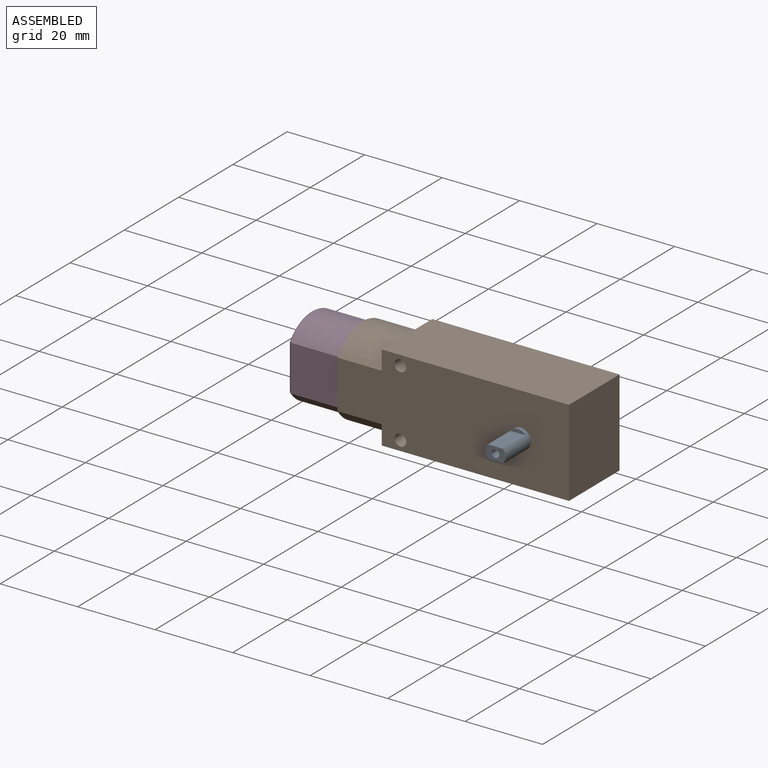
[diagram: assembled view]
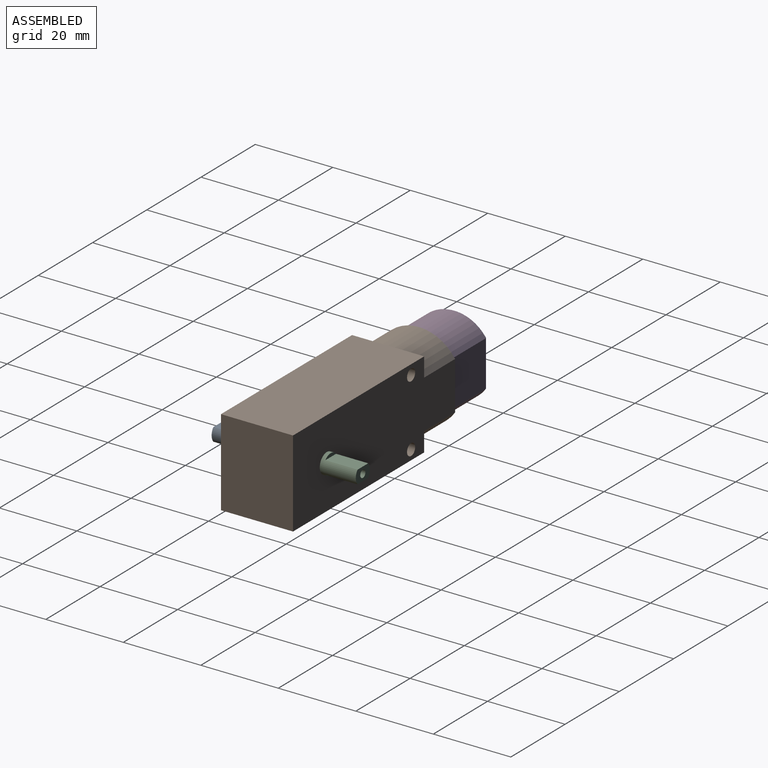
[diagram: assembled view, second angle]
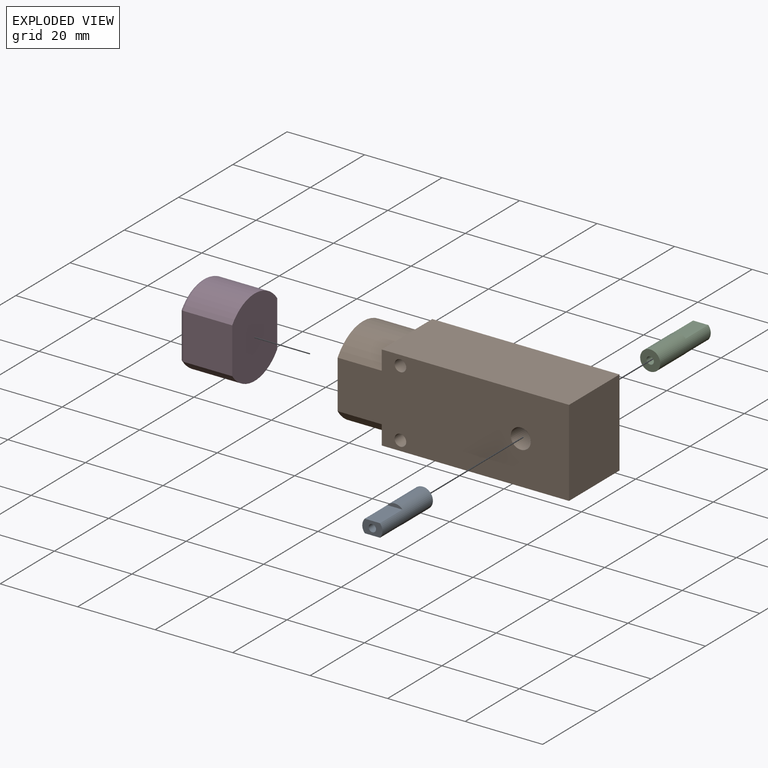
[diagram: exploded view]
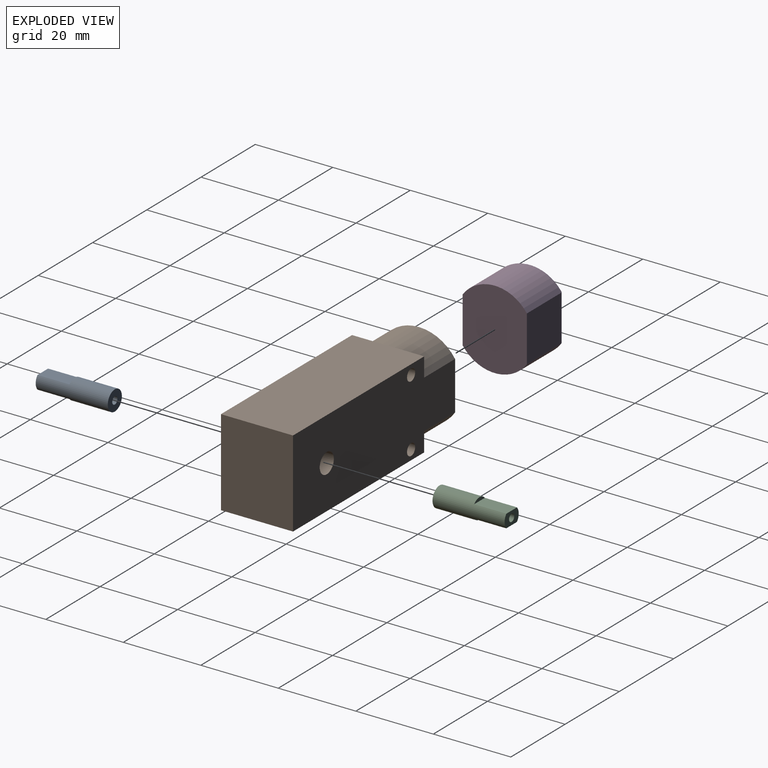
[diagram: exploded view, second angle]
ASSEMBLY  parts=4 mates=3
PART A: 8 faces, bbox 5.2x18.6x5.2 mm
  f0: plane 3.93x0.9mm, normal (0,-1,0), area 2.5mm2, adj f1,f5
  f1: cylinder r=2.6mm len=18.6mm, axis (0,1,0), area 229.8mm2, adj f0,f2,f3,f4,f5,f6
  f2: plane 3.93x0.9mm, normal (0,-1,0), area 2.5mm2, adj f1,f4
  f3: plane 5.2x5.2mm, normal (0,1,0), area 18.4mm2, adj f1,f7
  f4: plane 8.3x3.93mm, normal (0,0,1), area 32.7mm2, adj f1,f2,f6
  f5: plane 8.3x3.93mm, normal (0,0,-1), area 32.7mm2, adj f0,f1,f6
  f6: plane 5.2x3.4mm, normal (0,-1,0), area 13.5mm2, adj f1,f4,f5,f7
  f7: cylinder r=0.95mm len=18.6mm, axis (0,1,0), area 111mm2, adj f3,f6
PART B: 31 faces, bbox 59.7x18.6x22.4 mm
  f0: plane 22.4x18.6mm, normal (-1,0,0), area 65.7mm2, adj f11,f12,f13,f14,f27,f28,f29,f30
  f1: plane 9.3x4.96mm, normal (-1,0,0), area 13.7mm2, adj f5,f11,f13
  f2: plane 9.3x4.96mm, normal (-1,0,0), area 13.7mm2, adj f5,f12,f13
  f3: plane 9.3x4.96mm, normal (-1,0,0), area 13.7mm2, adj f9,f11,f14
  f4: plane 9.3x4.96mm, normal (-1,0,0), area 13.7mm2, adj f9,f12,f14
  f5: plane 48.32x18.6mm, normal (0,0,-1), area 898.8mm2, adj f1,f2,f6,f11,f12
  f6: plane 22.4x18.6mm, normal (1,0,0), area 416.6mm2, adj f5,f9,f11,f12
  f7: cylinder r=1.5mm len=18.6mm, axis (0,1,0), area 175.3mm2, adj f11,f12
  f8: cylinder r=1.5mm len=18.6mm, axis (0,1,0), area 175.3mm2, adj f11,f12
  f9: plane 48.32x18.6mm, normal (0,0,1), area 898.8mm2, adj f3,f4,f6,f11,f12
  f10: cylinder r=2.6mm len=18.6mm, axis (0,1,0), area 303.9mm2, adj f11,f12
  f11: plane 59.72x22.4mm, normal (0,-1,0), area 1189.3mm2, adj f0,f1,f3,f5,f6,f7,f8,f9
  f12: plane 59.72x22.4mm, normal (0,1,0), area 1189.3mm2, adj f0,f2,f4,f5,f6,f7,f8,f9
  f13: cylinder r=11.2mm len=18.6mm, axis (1,0,0), area 250.2mm2, adj f0,f1,f2,f11,f12
  f14: cylinder r=11.2mm len=18.6mm, axis (1,0,0), area 250.2mm2, adj f0,f3,f4,f11,f12
  f15: plane 40.52x16.6mm, normal (0,0,1), area 672.6mm2, adj f22,f24,f27,f28
  f16: plane 40.52x16.6mm, normal (0,0,-1), area 672.6mm2, adj f22,f23,f27,f28
  f17: plane 8.3x4.27mm, normal (1,0,0), area 10.6mm2, adj f21,f27,f29
  f18: plane 8.3x4.27mm, normal (1,0,0), area 10.6mm2, adj f21,f28,f29
  f19: plane 8.3x4.27mm, normal (1,0,0), area 10.6mm2, adj f25,f27,f30
  f20: plane 8.3x4.27mm, normal (1,0,0), area 10.6mm2, adj f25,f28,f30
  f21: plane 16.6x1.8mm, normal (0,0,1), area 29.9mm2, adj f17,f18,f24,f27,f28
  f22: plane 20.4x16.6mm, normal (-1,0,0), area 338.6mm2, adj f15,f16,f27,f28
  f23: cylinder r=2.5mm len=16.6mm, axis (0,1,0), area 183.8mm2, adj f16,f25,f27,f28
  f24: cylinder r=2.5mm len=16.6mm, axis (0,1,0), area 183.8mm2, adj f15,f21,f27,f28
  f25: plane 16.6x1.8mm, normal (0,0,-1), area 29.9mm2, adj f19,f20,f23,f27,f28
  f26: cylinder r=3.6mm len=16.6mm, axis (0,1,0), area 375.5mm2, adj f27,f28
  f27: plane 58.72x20.4mm, normal (0,1,0), area 1017.6mm2, adj f0,f15,f16,f17,f19,f21,f22,f23
  f28: plane 58.72x20.4mm, normal (0,-1,0), area 1017.6mm2, adj f0,f15,f16,f18,f20,f21,f22,f23
  f29: cylinder r=10.2mm len=16.6mm, axis (1,0,0), area 240.4mm2, adj f0,f17,f18,f27,f28
  f30: cylinder r=10.2mm len=16.6mm, axis (1,0,0), area 240.4mm2, adj f0,f19,f20,f27,f28
PART C: 8 faces, bbox 5.2x18.6x5.2 mm
  f0: plane 3.93x0.9mm, normal (0,1,0), area 2.5mm2, adj f1,f5
  f1: cylinder r=2.6mm len=18.6mm, axis (0,-1,0), area 229.8mm2, adj f0,f2,f3,f4,f5,f6
  f2: plane 3.93x0.9mm, normal (0,1,0), area 2.5mm2, adj f1,f4
  f3: plane 5.2x5.2mm, normal (0,-1,0), area 18.4mm2, adj f1,f7
  f4: plane 8.3x3.93mm, normal (0,0,1), area 32.7mm2, adj f1,f2,f6
  f5: plane 8.3x3.93mm, normal (0,0,-1), area 32.7mm2, adj f0,f1,f6
  f6: plane 5.2x3.4mm, normal (0,1,0), area 13.5mm2, adj f1,f4,f5,f7
  f7: cylinder r=0.95mm len=18.6mm, axis (0,-1,0), area 111mm2, adj f3,f6
PART D: 19 faces, bbox 16x18x22.1 mm
  f0: plane 18.4x14.6mm, normal (-1,0,0), area 171.2mm2, adj f6,f7,f8,f9,f10,f11,f12,f13
  f1: cylinder r=10.2mm len=16.6mm, axis (1,0,0), area 242.4mm2, adj f2,f4,f5,f6
  f2: plane 12.5x11.86mm, normal (0,-1,0), area 148.2mm2, adj f1,f3,f5,f7
  f3: cylinder r=10.2mm len=16.6mm, axis (1,0,0), area 242.4mm2, adj f2,f4,f5,f9
  f4: plane 12.5x11.86mm, normal (0,1,0), area 148.2mm2, adj f1,f3,f5,f8
  f5: plane 20.4x16.6mm, normal (1,0,0), area 296.2mm2, adj f1,f2,f3,f4
  f6: torus R=9.2mm, axis (-1,0,0), area 29mm2, adj f0,f1,f7,f8
  f7: cylinder r=1mm len=11.86mm, axis (0,0,-1), area 18.3mm2, adj f0,f2,f6,f9
  f8: cylinder r=1mm len=11.86mm, axis (0,0,1), area 18.3mm2, adj f0,f4,f6,f9
  f9: torus R=9.2mm, axis (-1,0,0), area 29mm2, adj f0,f3,f7,f8
  f10: plane 6.58x1.5mm, normal (0,-1,0), area 9.9mm2, adj f0,f11,f13,f15
  f11: cylinder r=4.95mm len=7.39mm, axis (1,0,0), area 12.5mm2, adj f0,f10,f12,f16
  f12: plane 6.58x1.5mm, normal (0,1,0), area 9.9mm2, adj f0,f11,f13,f18
  f13: cylinder r=4.95mm len=7.39mm, axis (1,0,0), area 12.5mm2, adj f0,f10,f12,f17
  f14: plane 7.9x5.39mm, normal (-1,0,0), area 39mm2, adj f15,f16,f17,f18
  f15: cylinder r=1mm len=6.58mm, axis (0,0,-1), area 9.9mm2, adj f10,f14,f16,f17
  f16: torus R=3.95mm, axis (-1,0,0), area 11.7mm2, adj f11,f14,f15,f18
  f17: torus R=3.95mm, axis (-1,0,0), area 11.7mm2, adj f13,f14,f15,f18
  f18: cylinder r=1mm len=6.58mm, axis (0,0,1), area 9.9mm2, adj f12,f14,f16,f17
PLACE A t=(32.19,-10.07,-2.31)mm
PLACE B t=(32.19,-10.07,-2.31)mm
PLACE C t=(32.19,-10.07,-2.31)mm
PLACE D t=(32.19,-10.07,-2.31)mm
MATE fastened B.f0 <-> D.f5  axis (-1,0,0) through (-3.37,-18.37,-2.64)mm
MATE fastened C.f1 <-> A.f1  axis (0,-1,0) through (43.9,-10.07,3.29)mm
MATE revolute A.f1 <-> B.f10  axis (0,1,0) through (43.9,-19.37,3.29)mm
